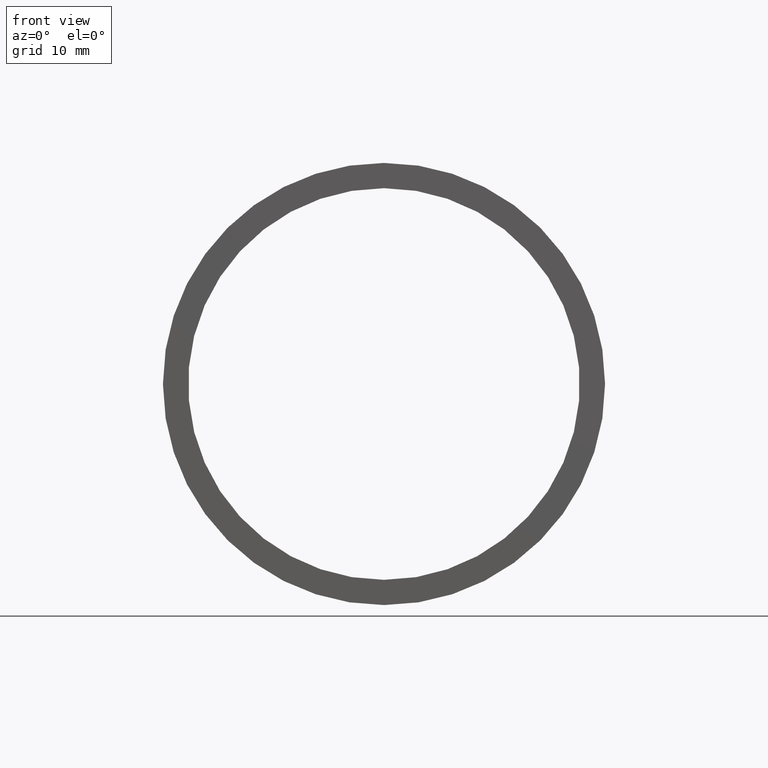
[diagram: clean part render]
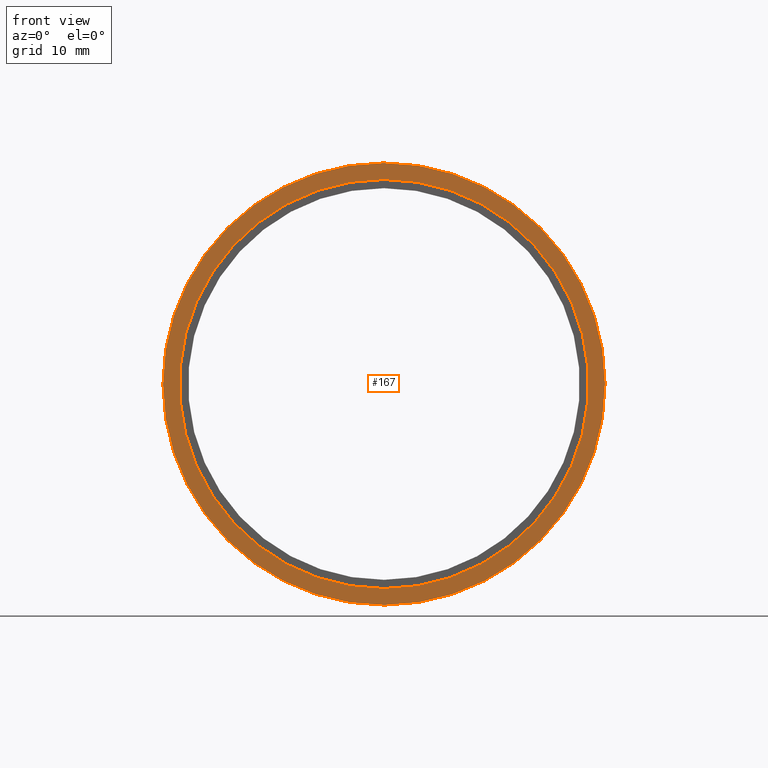
[diagram: same view with one face highlighted and labeled with its STEP entity id]
A machine part, front view. The second image highlights one B-rep face of the part: STEP entity #167.
In plain terms, the highlighted planar face has unit normal (-0, 1, 0).
Its self-contained STEP definition (entity closure, byte-faithful):
#1 = DIRECTION ( 'NONE',  ( 0.0000000000000000000, 0.0000000000000000000, 1.000000000000000000 ) ) ;
#3 = CARTESIAN_POINT ( 'NONE',  ( 0.0000000000000000000, -2.775557561562891400E-014, 25.40000000000001300 ) ) ;
#7 = AXIS2_PLACEMENT_3D ( 'NONE', #522, #581, #273 ) ;
#32 = ORIENTED_EDGE ( 'NONE', *, *, #179, .F. ) ;
#39 = AXIS2_PLACEMENT_3D ( 'NONE', #101, #318, #515 ) ;
#43 = DIRECTION ( 'NONE',  ( 0.0000000000000000000, 0.0000000000000000000, 1.000000000000000000 ) ) ;
#46 = ORIENTED_EDGE ( 'NONE', *, *, #93, .F. ) ;
#50 = PLANE ( 'NONE',  #39 ) ;
#64 = FACE_BOUND ( 'NONE', #309, .T. ) ;
#91 = CIRCLE ( 'NONE', #149, 23.50000000000002100 ) ;
#93 = EDGE_CURVE ( 'NONE', #427, #245, #121, .T. ) ;
#97 = FACE_OUTER_BOUND ( 'NONE', #194, .T. ) ;
#99 = CARTESIAN_POINT ( 'NONE',  ( 2.877919977996282700E-015, -2.775557561562891400E-014, -23.50000000000002100 ) ) ;
#101 = CARTESIAN_POINT ( 'NONE',  ( 23.50000000000002100, -1.436345924723669800E-014, 0.0000000000000000000 ) ) ;
#119 = CARTESIAN_POINT ( 'NONE',  ( 3.110602869834278800E-015, -2.775557561562891400E-014, -25.40000000000001300 ) ) ;
#121 = CIRCLE ( 'NONE', #334, 25.40000000000001300 ) ;
#146 = CIRCLE ( 'NONE', #615, 23.50000000000002100 ) ;
#149 = AXIS2_PLACEMENT_3D ( 'NONE', #270, #467, #1 ) ;
#159 = VERTEX_POINT ( 'NONE', #99 ) ;
#167 = ADVANCED_FACE ( 'NONE', ( #97, #64 ), #50, .F. ) ;
#179 = EDGE_CURVE ( 'NONE', #245, #427, #586, .T. ) ;
#194 = EDGE_LOOP ( 'NONE', ( #32, #46 ) ) ;
#195 = CARTESIAN_POINT ( 'NONE',  ( 0.0000000000000000000, -2.775557561562891400E-014, 0.0000000000000000000 ) ) ;
#198 = DIRECTION ( 'NONE',  ( -0.0000000000000000000, 1.000000000000000000, -0.0000000000000000000 ) ) ;
#220 = EDGE_CURVE ( 'NONE', #159, #459, #91, .T. ) ;
#241 = CARTESIAN_POINT ( 'NONE',  ( 0.0000000000000000000, -2.775557561562891400E-014, 23.50000000000002100 ) ) ;
#245 = VERTEX_POINT ( 'NONE', #3 ) ;
#262 = EDGE_CURVE ( 'NONE', #459, #159, #146, .T. ) ;
#270 = CARTESIAN_POINT ( 'NONE',  ( 0.0000000000000000000, -2.775557561562891400E-014, 0.0000000000000000000 ) ) ;
#273 = DIRECTION ( 'NONE',  ( 0.0000000000000000000, 0.0000000000000000000, 1.000000000000000000 ) ) ;
#293 = ORIENTED_EDGE ( 'NONE', *, *, #262, .T. ) ;
#309 = EDGE_LOOP ( 'NONE', ( #293, #566 ) ) ;
#318 = DIRECTION ( 'NONE',  ( -0.0000000000000000000, 1.000000000000000000, 0.0000000000000000000 ) ) ;
#334 = AXIS2_PLACEMENT_3D ( 'NONE', #565, #623, #43 ) ;
#423 = DIRECTION ( 'NONE',  ( 0.0000000000000000000, 0.0000000000000000000, 1.000000000000000000 ) ) ;
#427 = VERTEX_POINT ( 'NONE', #119 ) ;
#459 = VERTEX_POINT ( 'NONE', #241 ) ;
#467 = DIRECTION ( 'NONE',  ( -0.0000000000000000000, 1.000000000000000000, -0.0000000000000000000 ) ) ;
#515 = DIRECTION ( 'NONE',  ( 0.0000000000000000000, 0.0000000000000000000, 1.000000000000000000 ) ) ;
#522 = CARTESIAN_POINT ( 'NONE',  ( 0.0000000000000000000, -2.775557561562891400E-014, 0.0000000000000000000 ) ) ;
#565 = CARTESIAN_POINT ( 'NONE',  ( 0.0000000000000000000, -2.775557561562891400E-014, 0.0000000000000000000 ) ) ;
#566 = ORIENTED_EDGE ( 'NONE', *, *, #220, .T. ) ;
#581 = DIRECTION ( 'NONE',  ( -0.0000000000000000000, 1.000000000000000000, -0.0000000000000000000 ) ) ;
#586 = CIRCLE ( 'NONE', #7, 25.40000000000001300 ) ;
#615 = AXIS2_PLACEMENT_3D ( 'NONE', #195, #198, #423 ) ;
#623 = DIRECTION ( 'NONE',  ( -0.0000000000000000000, 1.000000000000000000, -0.0000000000000000000 ) ) ;